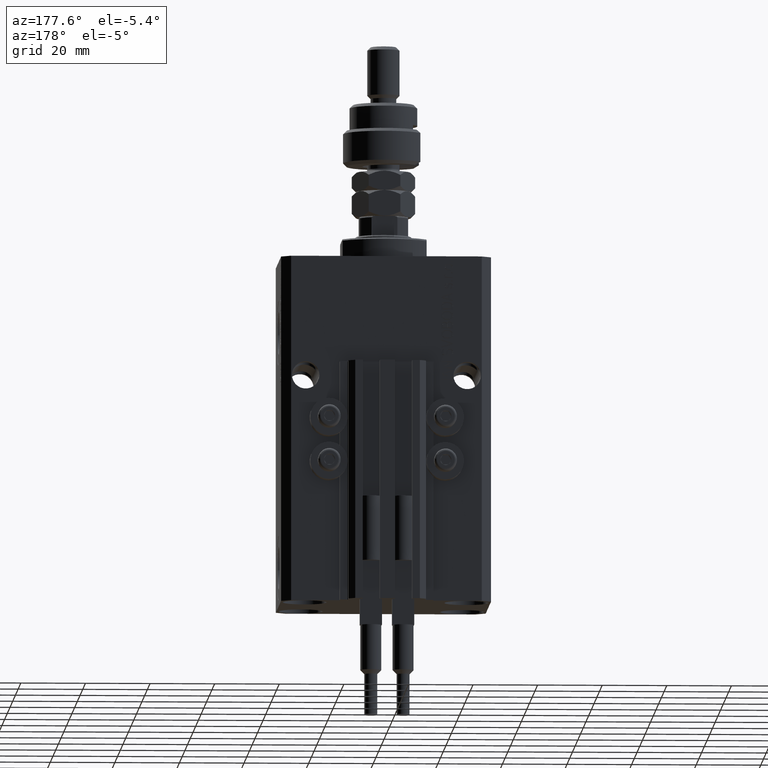
[diagram: clean part render]
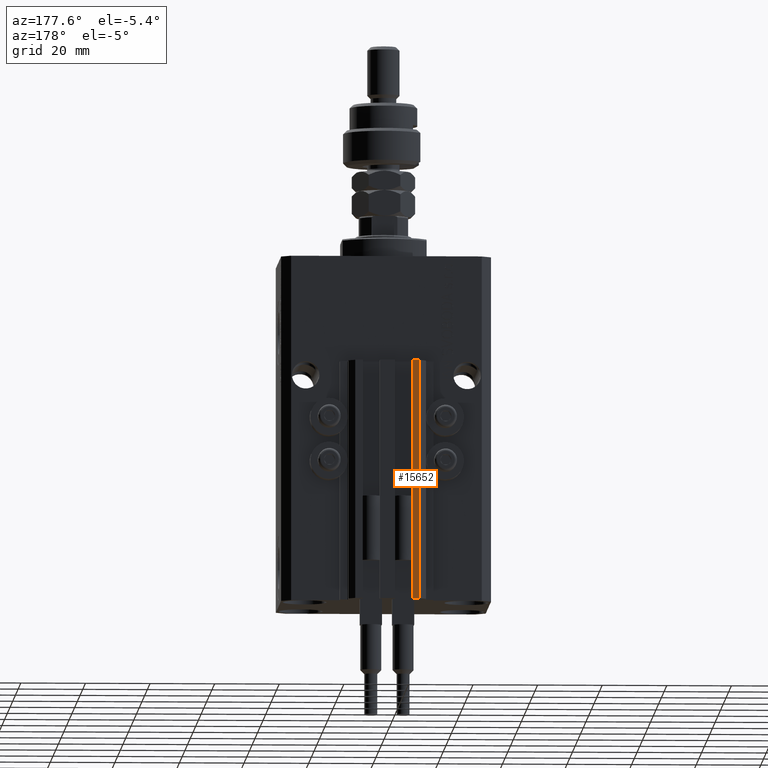
[diagram: same view with one face highlighted and labeled with its STEP entity id]
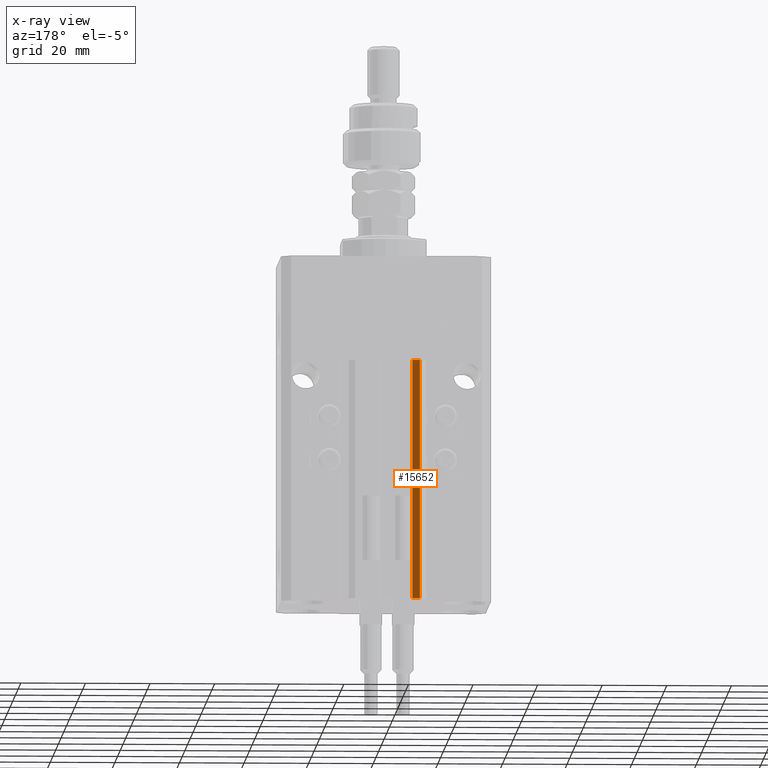
[diagram: x-ray of the same camera — body ghosted, the highlighted face saturated]
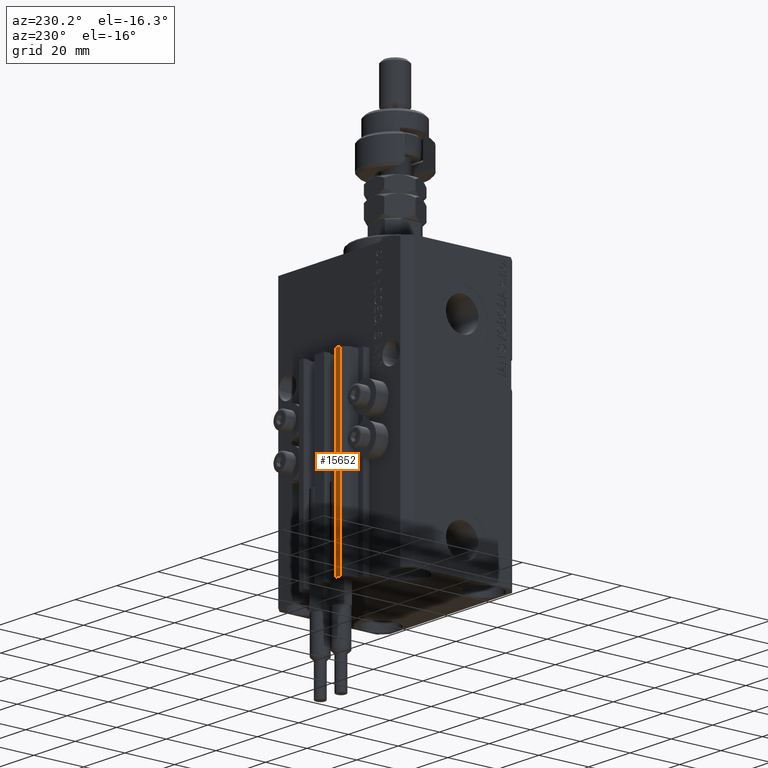
[diagram: same view with one face highlighted and labeled with its STEP entity id]
A machine part, auxiliary view. The second image highlights one B-rep face of the part: STEP entity #15652.
The next image is the same camera in x-ray: the body ghosted, the highlighted face saturated — about 0% of this face is hidden behind the body in this view.
A second angle (auxiliary view) of the same face is appended — the face is thin or edge-on in the first view.
In plain terms, the highlighted planar face has unit normal (0, 1, 0).
Its self-contained STEP definition (entity closure, byte-faithful):
#5347 = ORIENTED_EDGE ( 'NONE', *, *, #24788, .F. ) ;
#8214 = ORIENTED_EDGE ( 'NONE', *, *, #43151, .T. ) ;
#8225 = CARTESIAN_POINT ( 'NONE',  ( -10.00000000000000000, 30.49999999999948841, -107.0000000000000000 ) ) ;
#9663 = ORIENTED_EDGE ( 'NONE', *, *, #34343, .F. ) ;
#13194 = EDGE_CURVE ( 'NONE', #30771, #32751, #19837, .T. ) ;
#13401 = CARTESIAN_POINT ( 'NONE',  ( -7.650000000000000355, 30.49999999999948486, -107.0000000000000000 ) ) ;
#13780 = LINE ( 'NONE', #29876, #16158 ) ;
#15361 = CARTESIAN_POINT ( 'NONE',  ( -10.00000000000000000, 30.49999999999948841, -33.00000000000000000 ) ) ;
#15588 = VECTOR ( 'NONE', #17404, 1000.000000000000000 ) ;
#15652 = ADVANCED_FACE ( 'NONE', ( #24408 ), #20509, .T. ) ;
#15913 = EDGE_LOOP ( 'NONE', ( #9663, #5347, #18024, #8214 ) ) ;
#16158 = VECTOR ( 'NONE', #44666, 1000.000000000000000 ) ;
#17404 = DIRECTION ( 'NONE',  ( -1.000000000000000000, 1.476360405086644852E-15, 0.000000000000000000 ) ) ;
#17777 = CARTESIAN_POINT ( 'NONE',  ( -7.650000000000000355, 30.49999999999948486, -33.00000000000000000 ) ) ;
#18024 = ORIENTED_EDGE ( 'NONE', *, *, #13194, .T. ) ;
#19837 = LINE ( 'NONE', #44395, #15588 ) ;
#20243 = DIRECTION ( 'NONE',  ( 0.000000000000000000, 0.000000000000000000, 1.000000000000000000 ) ) ;
#20509 = PLANE ( 'NONE',  #26320 ) ;
#24408 = FACE_OUTER_BOUND ( 'NONE', #15913, .T. ) ;
#24788 = EDGE_CURVE ( 'NONE', #30771, #38621, #43871, .T. ) ;
#25986 = DIRECTION ( 'NONE',  ( -1.000000000000000000, 1.476360405086644852E-15, 0.000000000000000000 ) ) ;
#26320 = AXIS2_PLACEMENT_3D ( 'NONE', #27548, #36370, #35348 ) ;
#27548 = CARTESIAN_POINT ( 'NONE',  ( -7.650000000000000355, 30.49999999999948486, -107.0000000000000000 ) ) ;
#29876 = CARTESIAN_POINT ( 'NONE',  ( -10.00000000000000000, 30.49999999999948841, -107.0000000000000000 ) ) ;
#30771 = VERTEX_POINT ( 'NONE', #34202 ) ;
#32751 = VERTEX_POINT ( 'NONE', #8225 ) ;
#33339 = VECTOR ( 'NONE', #20243, 1000.000000000000000 ) ;
#34202 = CARTESIAN_POINT ( 'NONE',  ( -7.650000000000000355, 30.49999999999948486, -107.0000000000000000 ) ) ;
#34343 = EDGE_CURVE ( 'NONE', #38621, #36960, #49862, .T. ) ;
#35348 = DIRECTION ( 'NONE',  ( -1.000000000000000000, 1.476360405086644852E-15, 0.000000000000000000 ) ) ;
#36370 = DIRECTION ( 'NONE',  ( 1.476360405086644852E-15, 1.000000000000000000, -0.000000000000000000 ) ) ;
#36960 = VERTEX_POINT ( 'NONE', #15361 ) ;
#38454 = CARTESIAN_POINT ( 'NONE',  ( -7.650000000000000355, 30.49999999999948486, -33.00000000000000000 ) ) ;
#38621 = VERTEX_POINT ( 'NONE', #17777 ) ;
#39148 = VECTOR ( 'NONE', #25986, 1000.000000000000000 ) ;
#43151 = EDGE_CURVE ( 'NONE', #32751, #36960, #13780, .T. ) ;
#43871 = LINE ( 'NONE', #13401, #33339 ) ;
#44395 = CARTESIAN_POINT ( 'NONE',  ( -7.650000000000000355, 30.49999999999948486, -107.0000000000000000 ) ) ;
#44666 = DIRECTION ( 'NONE',  ( 0.000000000000000000, 0.000000000000000000, 1.000000000000000000 ) ) ;
#49862 = LINE ( 'NONE', #38454, #39148 ) ;